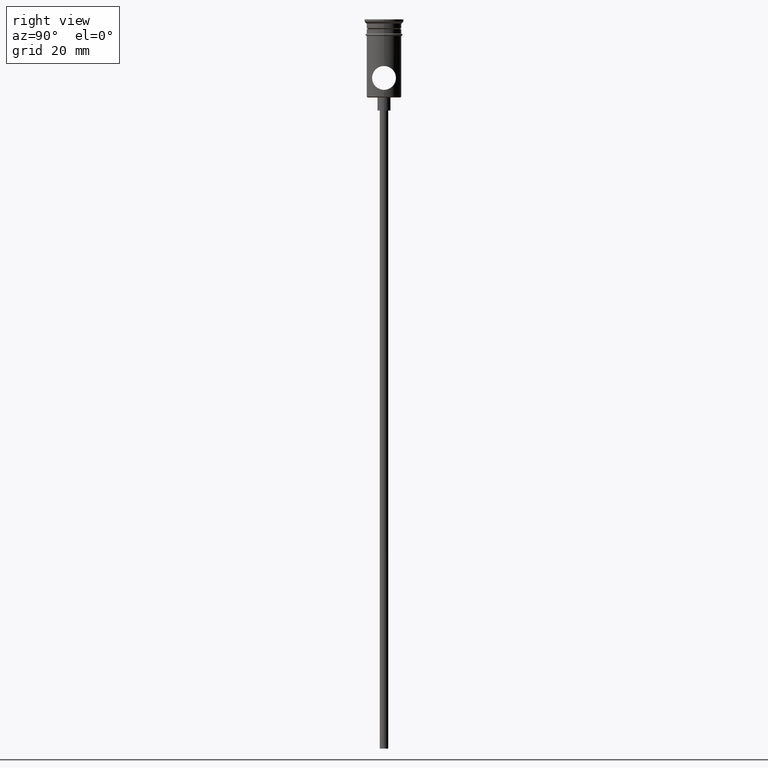
[diagram: clean part render]
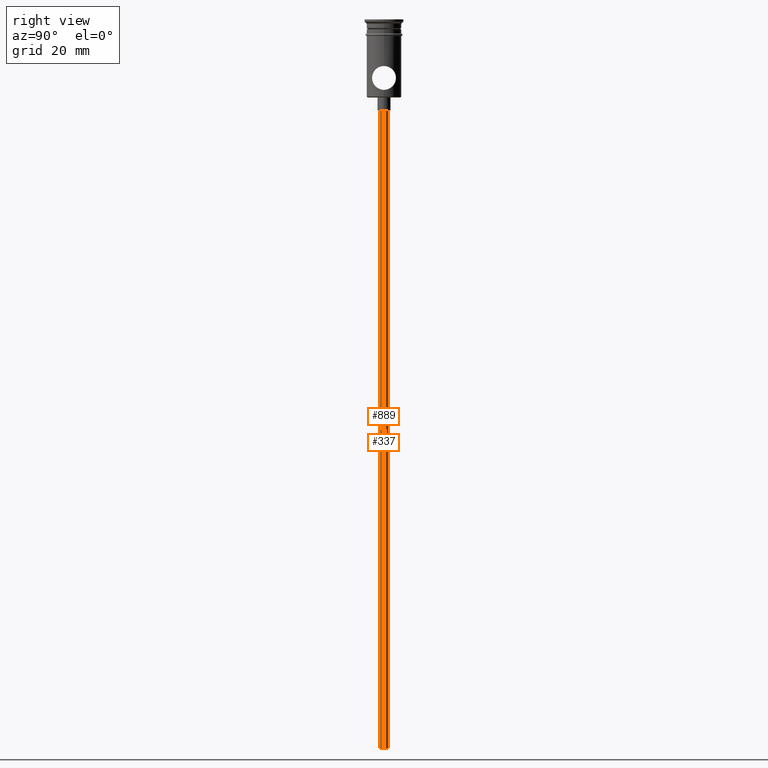
[diagram: same view with one multi-face feature highlighted, each face labeled with its STEP entity id]
A machine part, right view. The highlighted faces form ONE feature: a constant-radius fillet chain: 2 tangent blend faces with common blend radius 1 mm. The faces share edges in the B-rep.
Their STEP definitions:
[1] entity #889 (Cylinder):
#36 = CARTESIAN_POINT ( 'NONE',  ( -0.9999999999999997780, 1.224646799147352961E-16, -167.9999999999999716 ) ) ;
#41 = LINE ( 'NONE', #592, #1028 ) ;
#194 = CARTESIAN_POINT ( 'NONE',  ( 0.9999999999999997780, 0.000000000000000000, -20.99999999999999645 ) ) ;
#201 = DIRECTION ( 'NONE',  ( 0.000000000000000000, 0.000000000000000000, -1.000000000000000000 ) ) ;
#229 = CARTESIAN_POINT ( 'NONE',  ( 0.000000000000000000, 0.000000000000000000, -167.9999999999999716 ) ) ;
#262 = ORIENTED_EDGE ( 'NONE', *, *, #824, .T. ) ;
#266 = DIRECTION ( 'NONE',  ( -0.000000000000000000, -0.000000000000000000, 1.000000000000000000 ) ) ;
#296 = LINE ( 'NONE', #754, #612 ) ;
#434 = ORIENTED_EDGE ( 'NONE', *, *, #1245, .T. ) ;
#458 = VERTEX_POINT ( 'NONE', #1387 ) ;
#477 = VERTEX_POINT ( 'NONE', #194 ) ;
#510 = DIRECTION ( 'NONE',  ( -0.000000000000000000, -0.000000000000000000, 1.000000000000000000 ) ) ;
#534 = DIRECTION ( 'NONE',  ( -1.000000000000000000, 0.000000000000000000, 0.000000000000000000 ) ) ;
#592 = CARTESIAN_POINT ( 'NONE',  ( -0.9999999999999997780, 1.224646799147352961E-16, -167.9999999999999716 ) ) ;
#612 = VECTOR ( 'NONE', #510, 1000.000000000000000 ) ;
#667 = EDGE_CURVE ( 'NONE', #693, #458, #41, .T. ) ;
#668 = ORIENTED_EDGE ( 'NONE', *, *, #1289, .F. ) ;
#693 = VERTEX_POINT ( 'NONE', #36 ) ;
#709 = VERTEX_POINT ( 'NONE', #1039 ) ;
#719 = CARTESIAN_POINT ( 'NONE',  ( 0.000000000000000000, 0.000000000000000000, -167.9999999999999716 ) ) ;
#726 = CARTESIAN_POINT ( 'NONE',  ( 0.000000000000000000, 0.000000000000000000, -20.99999999999999645 ) ) ;
#731 = AXIS2_PLACEMENT_3D ( 'NONE', #726, #990, #534 ) ;
#754 = CARTESIAN_POINT ( 'NONE',  ( 0.9999999999999997780, 0.000000000000000000, -167.9999999999999716 ) ) ;
#799 = ORIENTED_EDGE ( 'NONE', *, *, #667, .F. ) ;
#824 = EDGE_CURVE ( 'NONE', #709, #477, #296, .T. ) ;
#845 = CIRCLE ( 'NONE', #913, 0.9999999999999997780 ) ;
#875 = DIRECTION ( 'NONE',  ( -0.000000000000000000, -0.000000000000000000, 1.000000000000000000 ) ) ;
#889 = ADVANCED_FACE ( 'NONE', ( #900 ), #976, .T. ) ;
#900 = FACE_OUTER_BOUND ( 'NONE', #1072, .T. ) ;
#913 = AXIS2_PLACEMENT_3D ( 'NONE', #719, #201, #1047 ) ;
#976 = CYLINDRICAL_SURFACE ( 'NONE', #1068, 0.9999999999999997780 ) ;
#990 = DIRECTION ( 'NONE',  ( 0.000000000000000000, 0.000000000000000000, -1.000000000000000000 ) ) ;
#1028 = VECTOR ( 'NONE', #266, 1000.000000000000000 ) ;
#1039 = CARTESIAN_POINT ( 'NONE',  ( 0.9999999999999997780, 0.000000000000000000, -167.9999999999999716 ) ) ;
#1047 = DIRECTION ( 'NONE',  ( -1.000000000000000000, 0.000000000000000000, 0.000000000000000000 ) ) ;
#1049 = CIRCLE ( 'NONE', #731, 0.9999999999999997780 ) ;
#1068 = AXIS2_PLACEMENT_3D ( 'NONE', #229, #875, #1406 ) ;
#1072 = EDGE_LOOP ( 'NONE', ( #799, #668, #262, #434 ) ) ;
#1245 = EDGE_CURVE ( 'NONE', #477, #458, #1049, .T. ) ;
#1289 = EDGE_CURVE ( 'NONE', #709, #693, #845, .T. ) ;
#1387 = CARTESIAN_POINT ( 'NONE',  ( -0.9999999999999997780, 1.224646799147352961E-16, -20.99999999999999645 ) ) ;
#1406 = DIRECTION ( 'NONE',  ( 1.000000000000000000, 0.000000000000000000, 0.000000000000000000 ) ) ;
[2] entity #337 (Cylinder):
#20 = DIRECTION ( 'NONE',  ( 0.000000000000000000, 0.000000000000000000, -1.000000000000000000 ) ) ;
#36 = CARTESIAN_POINT ( 'NONE',  ( -0.9999999999999997780, 1.224646799147352961E-16, -167.9999999999999716 ) ) ;
#41 = LINE ( 'NONE', #592, #1028 ) ;
#46 = CIRCLE ( 'NONE', #661, 0.9999999999999997780 ) ;
#63 = EDGE_CURVE ( 'NONE', #693, #709, #330, .T. ) ;
#186 = DIRECTION ( 'NONE',  ( 0.000000000000000000, 0.000000000000000000, -1.000000000000000000 ) ) ;
#194 = CARTESIAN_POINT ( 'NONE',  ( 0.9999999999999997780, 0.000000000000000000, -20.99999999999999645 ) ) ;
#202 = DIRECTION ( 'NONE',  ( -0.000000000000000000, -0.000000000000000000, 1.000000000000000000 ) ) ;
#266 = DIRECTION ( 'NONE',  ( -0.000000000000000000, -0.000000000000000000, 1.000000000000000000 ) ) ;
#296 = LINE ( 'NONE', #754, #612 ) ;
#321 = CARTESIAN_POINT ( 'NONE',  ( 0.000000000000000000, 0.000000000000000000, -20.99999999999999645 ) ) ;
#330 = CIRCLE ( 'NONE', #888, 0.9999999999999997780 ) ;
#337 = ADVANCED_FACE ( 'NONE', ( #763 ), #656, .T. ) ;
#419 = ORIENTED_EDGE ( 'NONE', *, *, #667, .T. ) ;
#428 = EDGE_CURVE ( 'NONE', #458, #477, #46, .T. ) ;
#433 = ORIENTED_EDGE ( 'NONE', *, *, #428, .T. ) ;
#449 = EDGE_LOOP ( 'NONE', ( #1157, #419, #433, #546 ) ) ;
#458 = VERTEX_POINT ( 'NONE', #1387 ) ;
#477 = VERTEX_POINT ( 'NONE', #194 ) ;
#510 = DIRECTION ( 'NONE',  ( -0.000000000000000000, -0.000000000000000000, 1.000000000000000000 ) ) ;
#546 = ORIENTED_EDGE ( 'NONE', *, *, #824, .F. ) ;
#592 = CARTESIAN_POINT ( 'NONE',  ( -0.9999999999999997780, 1.224646799147352961E-16, -167.9999999999999716 ) ) ;
#612 = VECTOR ( 'NONE', #510, 1000.000000000000000 ) ;
#654 = DIRECTION ( 'NONE',  ( -1.000000000000000000, 0.000000000000000000, 0.000000000000000000 ) ) ;
#656 = CYLINDRICAL_SURFACE ( 'NONE', #683, 0.9999999999999997780 ) ;
#661 = AXIS2_PLACEMENT_3D ( 'NONE', #321, #186, #654 ) ;
#667 = EDGE_CURVE ( 'NONE', #693, #458, #41, .T. ) ;
#683 = AXIS2_PLACEMENT_3D ( 'NONE', #1185, #202, #1085 ) ;
#693 = VERTEX_POINT ( 'NONE', #36 ) ;
#700 = CARTESIAN_POINT ( 'NONE',  ( 0.000000000000000000, 0.000000000000000000, -167.9999999999999716 ) ) ;
#709 = VERTEX_POINT ( 'NONE', #1039 ) ;
#754 = CARTESIAN_POINT ( 'NONE',  ( 0.9999999999999997780, 0.000000000000000000, -167.9999999999999716 ) ) ;
#763 = FACE_OUTER_BOUND ( 'NONE', #449, .T. ) ;
#824 = EDGE_CURVE ( 'NONE', #709, #477, #296, .T. ) ;
#888 = AXIS2_PLACEMENT_3D ( 'NONE', #700, #20, #1125 ) ;
#1028 = VECTOR ( 'NONE', #266, 1000.000000000000000 ) ;
#1039 = CARTESIAN_POINT ( 'NONE',  ( 0.9999999999999997780, 0.000000000000000000, -167.9999999999999716 ) ) ;
#1085 = DIRECTION ( 'NONE',  ( 1.000000000000000000, 0.000000000000000000, 0.000000000000000000 ) ) ;
#1125 = DIRECTION ( 'NONE',  ( -1.000000000000000000, 0.000000000000000000, 0.000000000000000000 ) ) ;
#1157 = ORIENTED_EDGE ( 'NONE', *, *, #63, .F. ) ;
#1185 = CARTESIAN_POINT ( 'NONE',  ( 0.000000000000000000, 0.000000000000000000, -167.9999999999999716 ) ) ;
#1387 = CARTESIAN_POINT ( 'NONE',  ( -0.9999999999999997780, 1.224646799147352961E-16, -20.99999999999999645 ) ) ;